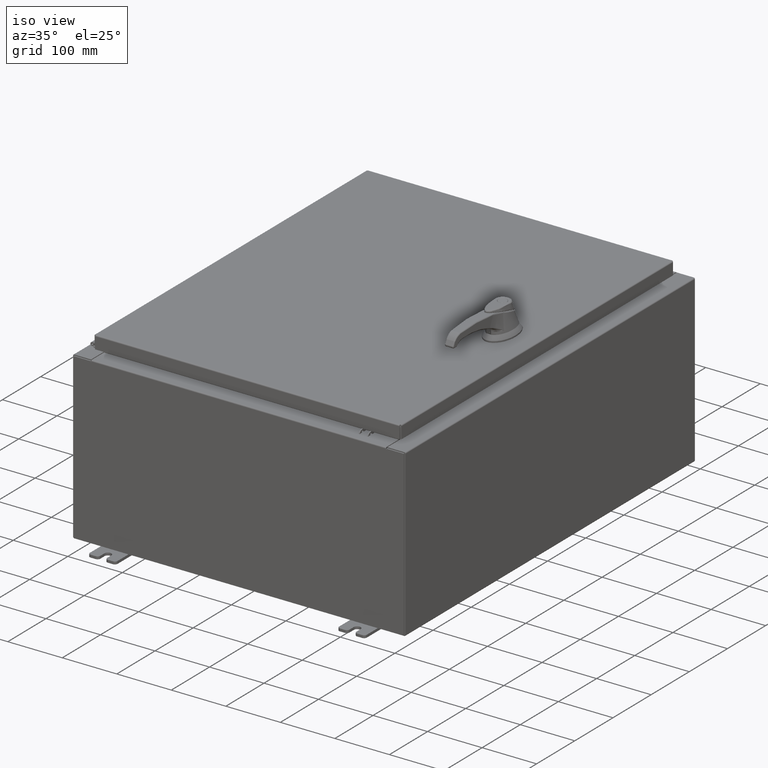
[diagram: clean part render]
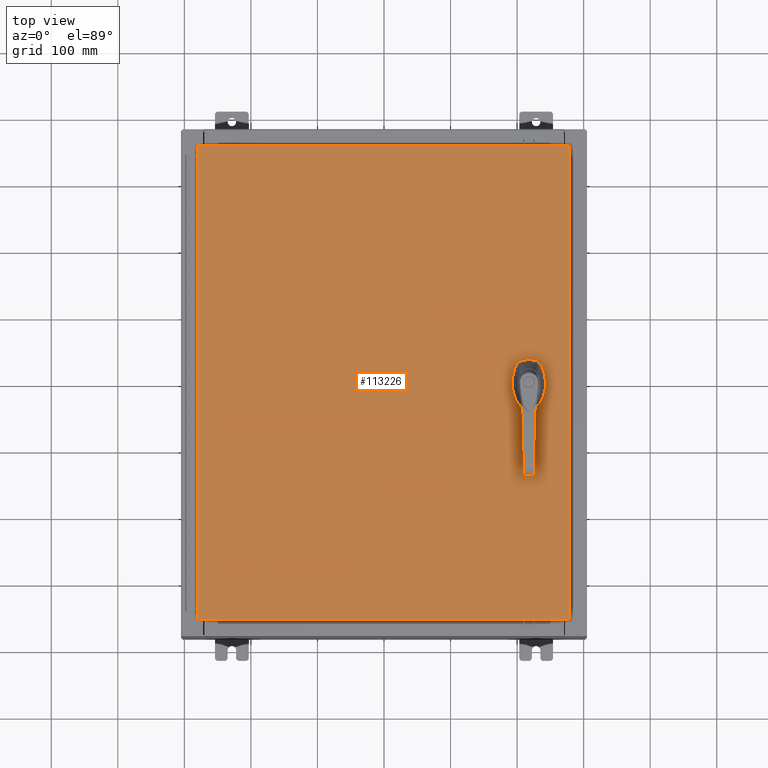
[diagram: tour spotlight — one face highlighted and labeled with its STEP entity id]
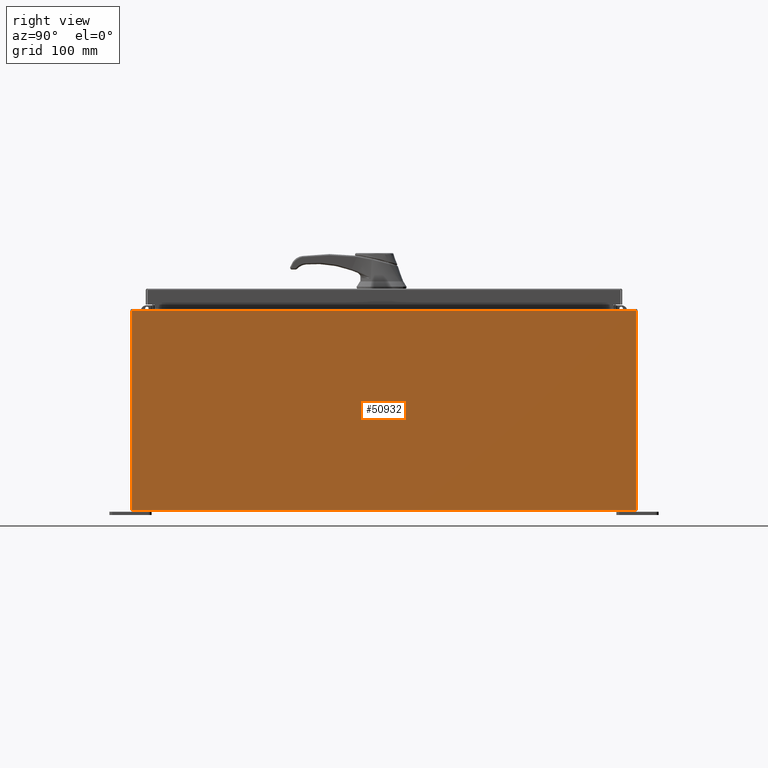
[diagram: tour spotlight — one face highlighted and labeled with its STEP entity id]
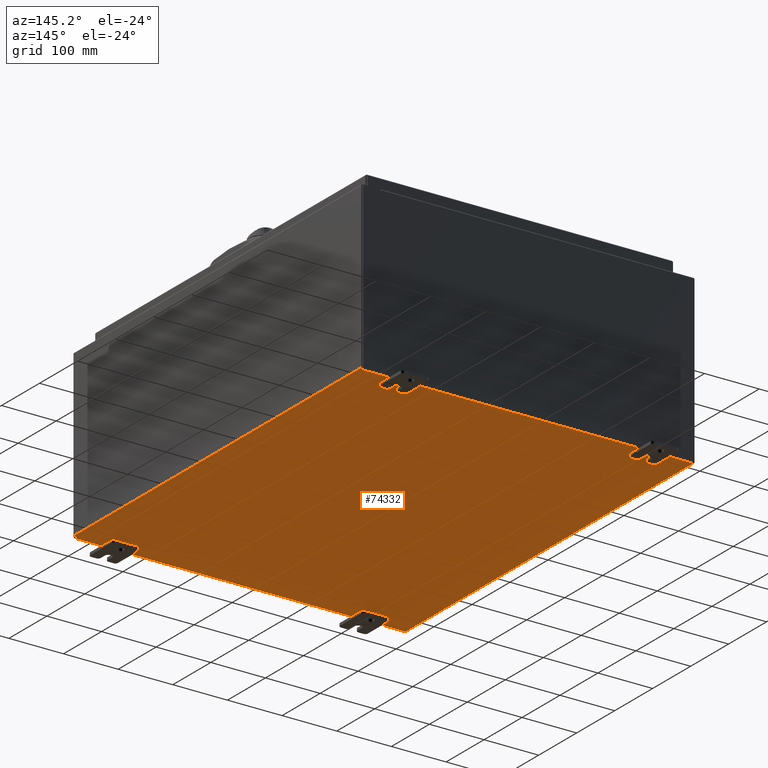
[diagram: tour spotlight — one face highlighted and labeled with its STEP entity id]
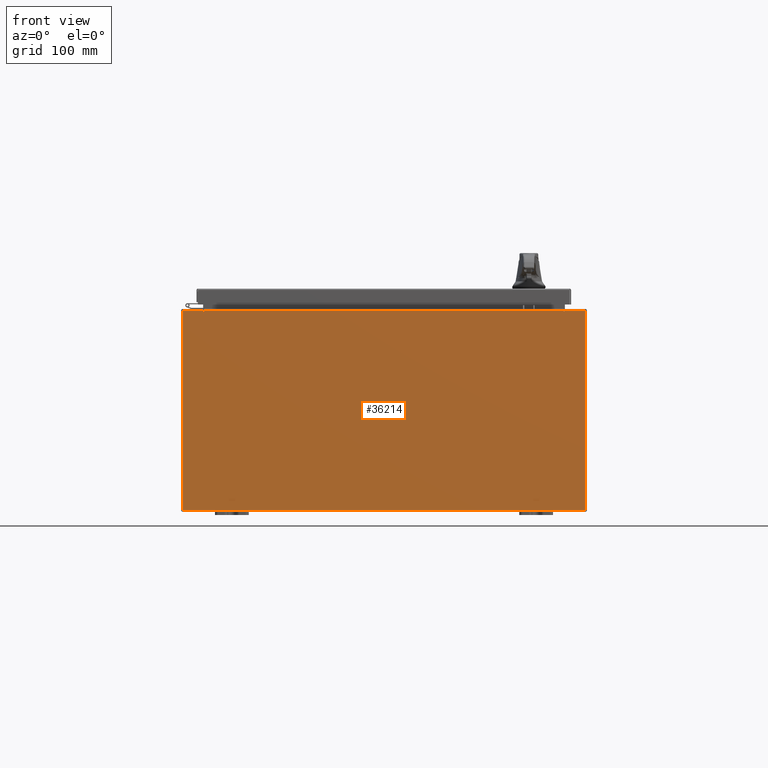
[diagram: tour spotlight — one face highlighted and labeled with its STEP entity id]
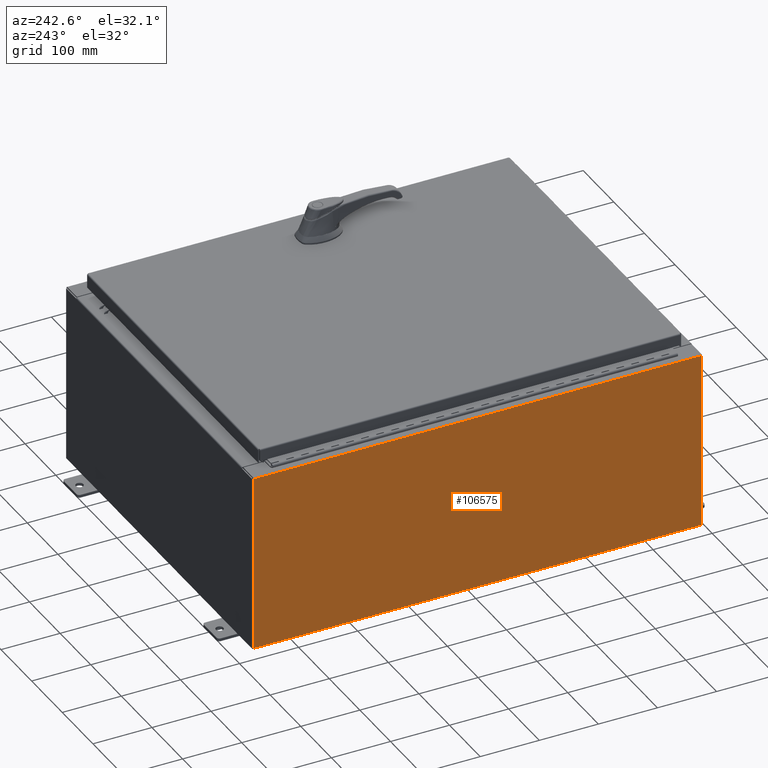
[diagram: tour spotlight — one face highlighted and labeled with its STEP entity id]
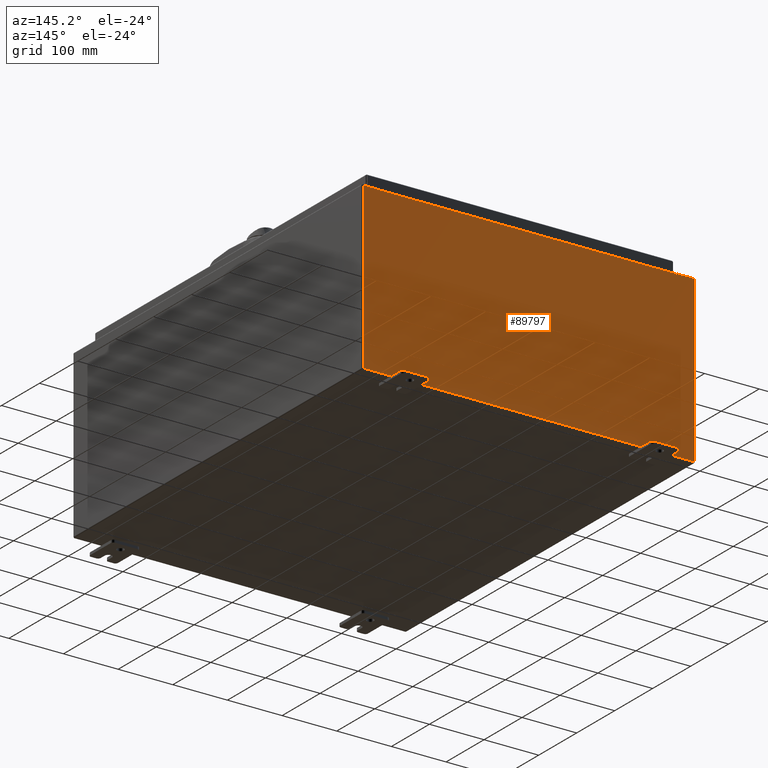
[diagram: tour spotlight — one face highlighted and labeled with its STEP entity id]
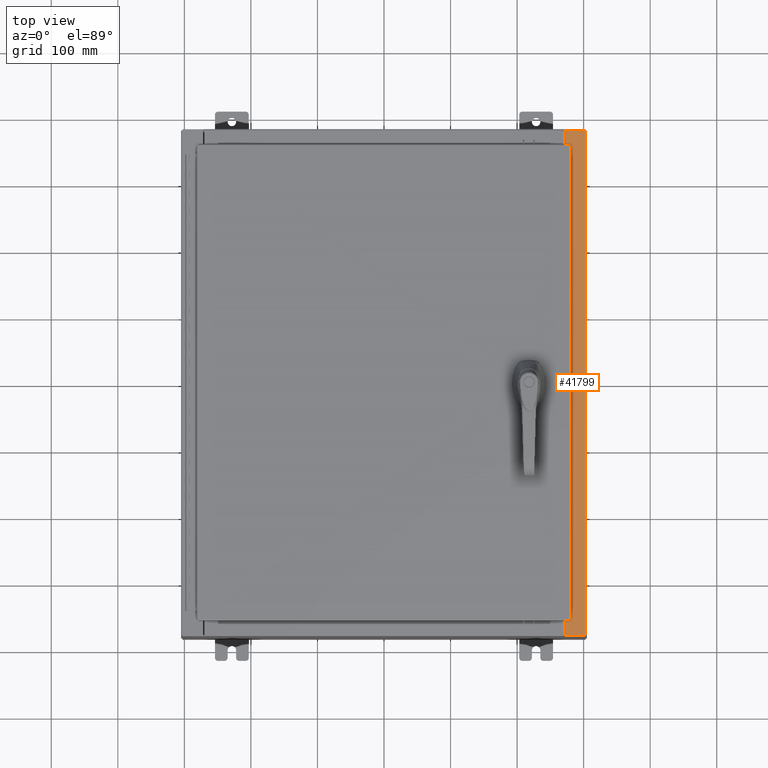
[diagram: tour spotlight — one face highlighted and labeled with its STEP entity id]
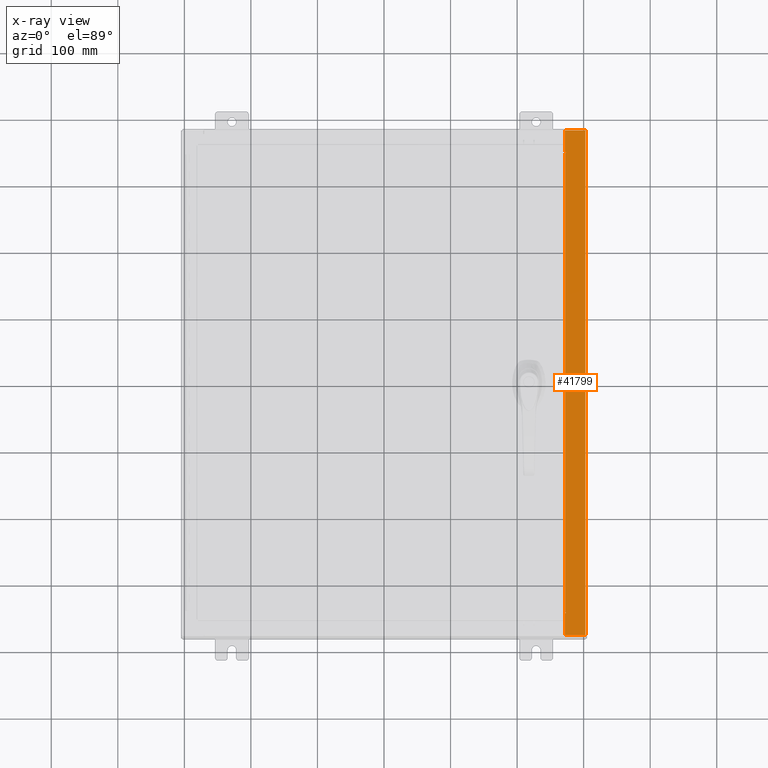
[diagram: x-ray of the same camera — body ghosted, this tour face saturated]
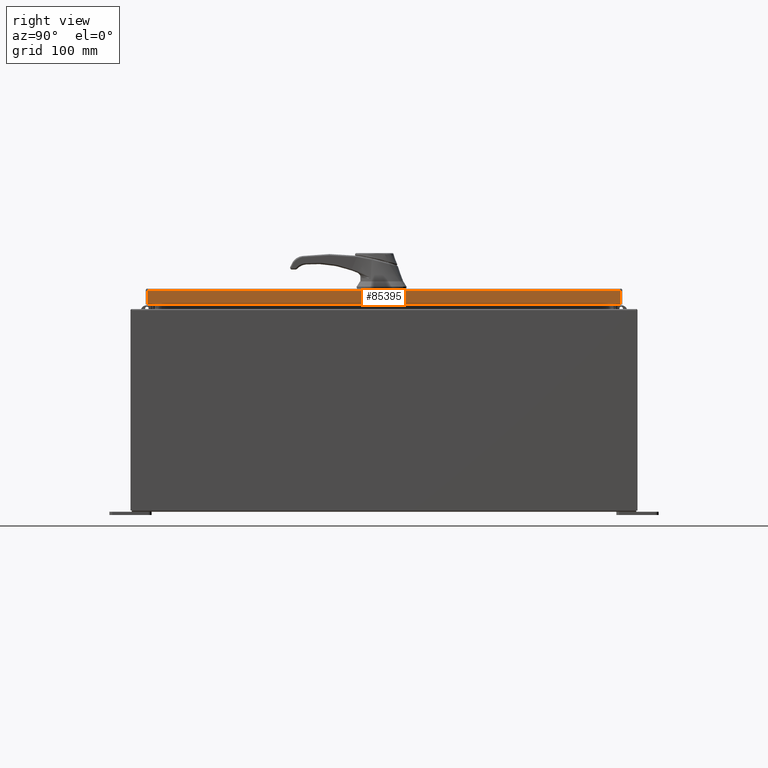
[diagram: tour spotlight — one face highlighted and labeled with its STEP entity id]
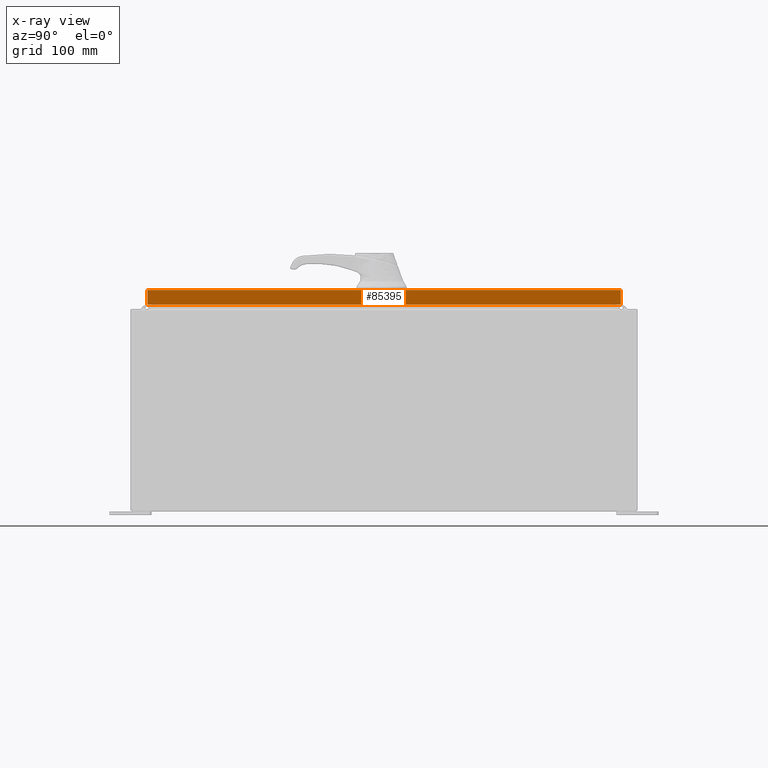
[diagram: x-ray of the same camera — body ghosted, this tour face saturated]
A machine part: a face-by-face anatomy tour. The part has 2662 B-rep faces; the first image is the clean iso view, then the 8 largest visible faces are spotlighted one at a time (largest first), each with its STEP entity span.

Face 1 — top view, entity #113226. In plain terms, the highlighted planar face has unit normal (0, 0, -1).
Definition (entity closure, byte-faithful):
#552 = CARTESIAN_POINT ( 'NONE',  ( 8.175000000000073500, 0.0000000000000000000, 0.0000000000000000000 ) ) ;
#681 = CARTESIAN_POINT ( 'NONE',  ( 8.778227370756310300, -0.4029999999999252000, 0.0000000000000000000 ) ) ;
#3718 = EDGE_LOOP ( 'NONE', ( #83803, #65424, #11867, #68314 ) ) ;
#3918 = VERTEX_POINT ( 'NONE', #81600 ) ;
#4423 = DIRECTION ( 'NONE',  ( -1.000000000000000000, 0.0000000000000000000, -0.0000000000000000000 ) ) ;
#6012 = CIRCLE ( 'NONE', #84306, 0.1715000000000011500 ) ;
#6052 = ORIENTED_EDGE ( 'NONE', *, *, #37590, .F. ) ;
#6076 = EDGE_CURVE ( 'NONE', #28359, #83015, #107732, .T. ) ;
#6632 = EDGE_CURVE ( 'NONE', #3918, #25065, #6012, .T. ) ;
#7347 = DIRECTION ( 'NONE',  ( -0.0000000000000000000, 0.0000000000000000000, 1.000000000000000000 ) ) ;
#8668 = CIRCLE ( 'NONE', #35659, 0.4499999999999156900 ) ;
#9457 = CARTESIAN_POINT ( 'NONE',  ( -10.99030000000000000, 14.00630000000000100, -2.048885995248197400E-016 ) ) ;
#9468 = DIRECTION ( 'NONE',  ( -0.0000000000000000000, 0.0000000000000000000, 1.000000000000000000 ) ) ;
#9781 = VECTOR ( 'NONE', #37372, 39.37007874015748100 ) ;
#10067 = CARTESIAN_POINT ( 'NONE',  ( -10.99030000000000000, 14.00630000000000100, -2.048885995248197400E-016 ) ) ;
#10175 = AXIS2_PLACEMENT_3D ( 'NONE', #64315, #9468, #73525 ) ;
#10211 = CARTESIAN_POINT ( 'NONE',  ( 8.980999999999927000, -0.2002273707563079800, 0.0000000000000000000 ) ) ;
#10273 = VECTOR ( 'NONE', #17662, 39.37007874015748100 ) ;
#10415 = ORIENTED_EDGE ( 'NONE', *, *, #58830, .F. ) ;
#10956 = CARTESIAN_POINT ( 'NONE',  ( 10.99030000000000000, -14.00629999999999800, -2.048885995248197400E-016 ) ) ;
#11867 = ORIENTED_EDGE ( 'NONE', *, *, #6076, .T. ) ;
#16851 = EDGE_CURVE ( 'NONE', #53922, #82404, #80452, .T. ) ;
#17662 = DIRECTION ( 'NONE',  ( 2.728745808672812900E-015, -1.000000000000000000, 0.0000000000000000000 ) ) ;
#18204 = VECTOR ( 'NONE', #74012, 39.37007874015748100 ) ;
#19116 = CARTESIAN_POINT ( 'NONE',  ( -10.99029999999999600, -14.00629999999999800, -2.219626494852214000E-016 ) ) ;
#20213 = CIRCLE ( 'NONE', #107423, 0.4499999999999156900 ) ;
#25065 = VERTEX_POINT ( 'NONE', #87733 ) ;
#25366 = EDGE_LOOP ( 'NONE', ( #57072, #53209, #6052, #99730, #84973, #81536, #68091, #10415 ) ) ;
#28359 = VERTEX_POINT ( 'NONE', #47583 ) ;
#29485 = EDGE_CURVE ( 'NONE', #47803, #82404, #44343, .T. ) ;
#30784 = DIRECTION ( 'NONE',  ( -1.000000000000000000, 0.0000000000000000000, 0.0000000000000000000 ) ) ;
#30899 = EDGE_CURVE ( 'NONE', #65604, #81513, #34101, .T. ) ;
#30973 = VERTEX_POINT ( 'NONE', #38145 ) ;
#32534 = EDGE_CURVE ( 'NONE', #83015, #41178, #108363, .T. ) ;
#32985 = CARTESIAN_POINT ( 'NONE',  ( 8.577999999999999400, 0.0000000000000000000, 0.0000000000000000000 ) ) ;
#34101 = LINE ( 'NONE', #552, #9781 ) ;
#35355 = VECTOR ( 'NONE', #73516, 39.37007874015748100 ) ;
#35659 = AXIS2_PLACEMENT_3D ( 'NONE', #32985, #97066, #42217 ) ;
#37104 = EDGE_CURVE ( 'NONE', #109594, #47286, #55060, .T. ) ;
#37372 = DIRECTION ( 'NONE',  ( 0.0000000000000000000, -1.000000000000000000, 0.0000000000000000000 ) ) ;
#37590 = EDGE_CURVE ( 'NONE', #37837, #47803, #102194, .T. ) ;
#37837 = VERTEX_POINT ( 'NONE', #74236 ) ;
#38145 = CARTESIAN_POINT ( 'NONE',  ( 10.99030000000000000, -14.00629999999999800, -2.048885995248197400E-016 ) ) ;
#39296 = DIRECTION ( 'NONE',  ( -0.0000000000000000000, 0.0000000000000000000, 1.000000000000000000 ) ) ;
#41178 = VERTEX_POINT ( 'NONE', #102740 ) ;
#42217 = DIRECTION ( 'NONE',  ( 1.000000000000000000, 0.0000000000000000000, 0.0000000000000000000 ) ) ;
#42256 = DIRECTION ( 'NONE',  ( -0.0000000000000000000, 0.0000000000000000000, 1.000000000000000000 ) ) ;
#44343 = CIRCLE ( 'NONE', #61997, 0.4499999999999156900 ) ;
#45370 = CARTESIAN_POINT ( 'NONE',  ( 8.175000000000073500, -0.2002273707563079800, 0.0000000000000000000 ) ) ;
#46951 = CARTESIAN_POINT ( 'NONE',  ( 8.577999999999999400, 0.0000000000000000000, 0.0000000000000000000 ) ) ;
#47286 = VERTEX_POINT ( 'NONE', #64250 ) ;
#47583 = CARTESIAN_POINT ( 'NONE',  ( 10.99030000000000000, 14.00629999999999800, -2.048885995248197400E-016 ) ) ;
#47803 = VERTEX_POINT ( 'NONE', #681 ) ;
#51325 = CARTESIAN_POINT ( 'NONE',  ( 8.980999999999925300, 0.2002273707563080300, 0.0000000000000000000 ) ) ;
#53209 = ORIENTED_EDGE ( 'NONE', *, *, #29485, .F. ) ;
#53922 = VERTEX_POINT ( 'NONE', #51325 ) ;
#55060 = LINE ( 'NONE', #105612, #103677 ) ;
#55211 = AXIS2_PLACEMENT_3D ( 'NONE', #104853, #113638, #4423 ) ;
#56159 = DIRECTION ( 'NONE',  ( 1.000000000000000000, 0.0000000000000000000, 0.0000000000000000000 ) ) ;
#57072 = ORIENTED_EDGE ( 'NONE', *, *, #16851, .T. ) ;
#57391 = DIRECTION ( 'NONE',  ( 0.0000000000000000000, 1.000000000000000000, 0.0000000000000000000 ) ) ;
#58830 = EDGE_CURVE ( 'NONE', #53922, #109594, #8668, .T. ) ;
#58954 = VECTOR ( 'NONE', #57391, 39.37007874015748100 ) ;
#59060 = VECTOR ( 'NONE', #89626, 39.37007874015748100 ) ;
#59099 = ORIENTED_EDGE ( 'NONE', *, *, #6632, .F. ) ;
#59242 = PLANE ( 'NONE',  #55211 ) ;
#59792 = FACE_OUTER_BOUND ( 'NONE', #3718, .T. ) ;
#61997 = AXIS2_PLACEMENT_3D ( 'NONE', #94163, #39296, #103307 ) ;
#62166 = CARTESIAN_POINT ( 'NONE',  ( 8.577999999999999400, 0.0000000000000000000, 0.0000000000000000000 ) ) ;
#64250 = CARTESIAN_POINT ( 'NONE',  ( 8.377772629243690300, 0.4029999999999252000, 0.0000000000000000000 ) ) ;
#64315 = CARTESIAN_POINT ( 'NONE',  ( 8.577999999999999400, -1.338000000000000100, 0.0000000000000000000 ) ) ;
#65424 = ORIENTED_EDGE ( 'NONE', *, *, #100059, .T. ) ;
#65604 = VERTEX_POINT ( 'NONE', #109018 ) ;
#68091 = ORIENTED_EDGE ( 'NONE', *, *, #37104, .F. ) ;
#68251 = ORIENTED_EDGE ( 'NONE', *, *, #80985, .F. ) ;
#68314 = ORIENTED_EDGE ( 'NONE', *, *, #32534, .T. ) ;
#71227 = CARTESIAN_POINT ( 'NONE',  ( 10.99030000000000000, 14.00629999999999800, -2.048885995248197400E-016 ) ) ;
#71393 = DIRECTION ( 'NONE',  ( 1.000000000000000000, 0.0000000000000000000, 0.0000000000000000000 ) ) ;
#73516 = DIRECTION ( 'NONE',  ( 0.0000000000000000000, -1.000000000000000000, 0.0000000000000000000 ) ) ;
#73525 = DIRECTION ( 'NONE',  ( 1.000000000000000000, 0.0000000000000000000, 0.0000000000000000000 ) ) ;
#74012 = DIRECTION ( 'NONE',  ( 1.000000000000000000, -0.0000000000000000000, -0.0000000000000000000 ) ) ;
#74236 = CARTESIAN_POINT ( 'NONE',  ( 8.377772629243690300, -0.4029999999999252000, 0.0000000000000000000 ) ) ;
#77861 = VECTOR ( 'NONE', #79055, 39.37007874015748100 ) ;
#79055 = DIRECTION ( 'NONE',  ( 1.000000000000000000, 0.0000000000000000000, 0.0000000000000000000 ) ) ;
#79976 = CARTESIAN_POINT ( 'NONE',  ( 8.778227370756310300, 0.4029999999999252000, 0.0000000000000000000 ) ) ;
#80452 = LINE ( 'NONE', #118130, #10273 ) ;
#80985 = EDGE_CURVE ( 'NONE', #25065, #3918, #109324, .T. ) ;
#81513 = VERTEX_POINT ( 'NONE', #45370 ) ;
#81536 = ORIENTED_EDGE ( 'NONE', *, *, #100402, .F. ) ;
#81600 = CARTESIAN_POINT ( 'NONE',  ( 8.406499999999999400, -1.338000000000000100, 0.0000000000000000000 ) ) ;
#82404 = VERTEX_POINT ( 'NONE', #10211 ) ;
#83015 = VERTEX_POINT ( 'NONE', #10067 ) ;
#83803 = ORIENTED_EDGE ( 'NONE', *, *, #113547, .T. ) ;
#84306 = AXIS2_PLACEMENT_3D ( 'NONE', #97111, #42256, #106275 ) ;
#84973 = ORIENTED_EDGE ( 'NONE', *, *, #30899, .F. ) ;
#86192 = LINE ( 'NONE', #10956, #58954 ) ;
#87031 = FACE_BOUND ( 'NONE', #25366, .T. ) ;
#87733 = CARTESIAN_POINT ( 'NONE',  ( 8.749500000000001200, -1.338000000000000100, 0.0000000000000000000 ) ) ;
#89626 = DIRECTION ( 'NONE',  ( -1.000000000000000000, -0.0000000000000000000, -0.0000000000000000000 ) ) ;
#94163 = CARTESIAN_POINT ( 'NONE',  ( 8.577999999999999400, 0.0000000000000000000, 0.0000000000000000000 ) ) ;
#97066 = DIRECTION ( 'NONE',  ( -0.0000000000000000000, 0.0000000000000000000, 1.000000000000000000 ) ) ;
#97111 = CARTESIAN_POINT ( 'NONE',  ( 8.577999999999999400, -1.338000000000000100, 0.0000000000000000000 ) ) ;
#97146 = CIRCLE ( 'NONE', #114890, 0.4499999999999156900 ) ;
#99730 = ORIENTED_EDGE ( 'NONE', *, *, #112616, .F. ) ;
#100059 = EDGE_CURVE ( 'NONE', #30973, #28359, #86192, .T. ) ;
#100402 = EDGE_CURVE ( 'NONE', #47286, #65604, #20213, .T. ) ;
#102194 = LINE ( 'NONE', #115426, #77861 ) ;
#102740 = CARTESIAN_POINT ( 'NONE',  ( -10.99029999999999800, -14.00629999999999800, -2.048885995248197400E-016 ) ) ;
#103307 = DIRECTION ( 'NONE',  ( 1.000000000000000000, 0.0000000000000000000, 0.0000000000000000000 ) ) ;
#103677 = VECTOR ( 'NONE', #30784, 39.37007874015748100 ) ;
#104853 = CARTESIAN_POINT ( 'NONE',  ( 0.0000000000000000000, 0.0000000000000000000, 0.0000000000000000000 ) ) ;
#105612 = CARTESIAN_POINT ( 'NONE',  ( 0.0000000000000000000, 0.4029999999999252000, 0.0000000000000000000 ) ) ;
#106275 = DIRECTION ( 'NONE',  ( 1.000000000000000000, 0.0000000000000000000, 0.0000000000000000000 ) ) ;
#107423 = AXIS2_PLACEMENT_3D ( 'NONE', #46951, #110942, #56159 ) ;
#107732 = LINE ( 'NONE', #71227, #59060 ) ;
#108196 = EDGE_LOOP ( 'NONE', ( #68251, #59099 ) ) ;
#108363 = LINE ( 'NONE', #9457, #35355 ) ;
#109018 = CARTESIAN_POINT ( 'NONE',  ( 8.175000000000073500, 0.2002273707563079800, 0.0000000000000000000 ) ) ;
#109324 = CIRCLE ( 'NONE', #10175, 0.1715000000000011500 ) ;
#109594 = VERTEX_POINT ( 'NONE', #79976 ) ;
#110942 = DIRECTION ( 'NONE',  ( -0.0000000000000000000, 0.0000000000000000000, 1.000000000000000000 ) ) ;
#112616 = EDGE_CURVE ( 'NONE', #81513, #37837, #97146, .T. ) ;
#113226 = ADVANCED_FACE ( 'NONE', ( #114175, #59792, #87031 ), #59242, .F. ) ;
#113547 = EDGE_CURVE ( 'NONE', #41178, #30973, #115552, .T. ) ;
#113638 = DIRECTION ( 'NONE',  ( 0.0000000000000000000, 0.0000000000000000000, -1.000000000000000000 ) ) ;
#114175 = FACE_BOUND ( 'NONE', #108196, .T. ) ;
#114890 = AXIS2_PLACEMENT_3D ( 'NONE', #62166, #7347, #71393 ) ;
#115426 = CARTESIAN_POINT ( 'NONE',  ( 0.0000000000000000000, -0.4029999999999252000, 0.0000000000000000000 ) ) ;
#115552 = LINE ( 'NONE', #19116, #18204 ) ;
#118130 = CARTESIAN_POINT ( 'NONE',  ( 8.980999999999925300, 2.450686610769032800E-014, 0.0000000000000000000 ) ) ;

Face 2 — right view, entity #50932. In plain terms, the highlighted planar face has unit normal (-1, 0, 0).
Definition (entity closure, byte-faithful):
#501 = VERTEX_POINT ( 'NONE', #10116 ) ;
#2182 = DIRECTION ( 'NONE',  ( 3.482016343714355500E-015, -1.832640180902292400E-016, 1.000000000000000000 ) ) ;
#3066 = AXIS2_PLACEMENT_3D ( 'NONE', #52034, #116011, #61249 ) ;
#10116 = CARTESIAN_POINT ( 'NONE',  ( 11.99999999999999600, 14.92529999999999800, 0.01299999999999766100 ) ) ;
#11379 = CARTESIAN_POINT ( 'NONE',  ( 11.99999999999999600, 14.92530000000000000, -3.930973933138173100E-014 ) ) ;
#14778 = EDGE_CURVE ( 'NONE', #501, #74036, #96272, .T. ) ;
#21118 = LINE ( 'NONE', #106084, #115623 ) ;
#23376 = CARTESIAN_POINT ( 'NONE',  ( 11.99999999999999600, -14.92530000000000000, -3.930973933138173100E-014 ) ) ;
#24345 = ORIENTED_EDGE ( 'NONE', *, *, #65614, .T. ) ;
#30242 = ORIENTED_EDGE ( 'NONE', *, *, #14778, .T. ) ;
#36193 = DIRECTION ( 'NONE',  ( -0.0000000000000000000, -1.000000000000000000, -0.0000000000000000000 ) ) ;
#41826 = DIRECTION ( 'NONE',  ( -3.482016343714355500E-015, -1.832640180902292400E-016, -1.000000000000000000 ) ) ;
#46526 = LINE ( 'NONE', #23376, #92360 ) ;
#50442 = VECTOR ( 'NONE', #2182, 39.37007874015748100 ) ;
#50932 = ADVANCED_FACE ( 'NONE', ( #84053 ), #70065, .F. ) ;
#52034 = CARTESIAN_POINT ( 'NONE',  ( 11.99999999999999600, 0.0000000000000000000, -4.204500978058383300E-014 ) ) ;
#61249 = DIRECTION ( 'NONE',  ( 3.482016343714355100E-015, 0.0000000000000000000, 1.000000000000000000 ) ) ;
#61954 = EDGE_CURVE ( 'NONE', #501, #80273, #21118, .T. ) ;
#65614 = EDGE_CURVE ( 'NONE', #74036, #85061, #76545, .T. ) ;
#69656 = EDGE_LOOP ( 'NONE', ( #24345, #105879, #91136, #30242 ) ) ;
#69682 = DIRECTION ( 'NONE',  ( 2.549319440810500300E-031, -1.000000000000000000, 7.321388497823869400E-017 ) ) ;
#70065 = PLANE ( 'NONE',  #3066 ) ;
#70110 = CARTESIAN_POINT ( 'NONE',  ( 11.99999999999999600, -14.92530000000000000, 0.01299999999999997900 ) ) ;
#74036 = VERTEX_POINT ( 'NONE', #82777 ) ;
#76545 = LINE ( 'NONE', #100231, #79392 ) ;
#79289 = EDGE_CURVE ( 'NONE', #85061, #80273, #46526, .T. ) ;
#79392 = VECTOR ( 'NONE', #36193, 39.37007874015748100 ) ;
#80273 = VERTEX_POINT ( 'NONE', #70110 ) ;
#82777 = CARTESIAN_POINT ( 'NONE',  ( 12.00000000000003700, 14.92529999999999800, 11.83760000000000000 ) ) ;
#84053 = FACE_OUTER_BOUND ( 'NONE', #69656, .T. ) ;
#85061 = VERTEX_POINT ( 'NONE', #98861 ) ;
#91136 = ORIENTED_EDGE ( 'NONE', *, *, #61954, .F. ) ;
#92360 = VECTOR ( 'NONE', #41826, 39.37007874015748100 ) ;
#96272 = LINE ( 'NONE', #11379, #50442 ) ;
#98861 = CARTESIAN_POINT ( 'NONE',  ( 12.00000000000003700, -14.92529999999999800, 11.83760000000000000 ) ) ;
#100231 = CARTESIAN_POINT ( 'NONE',  ( 12.00000000000003700, 14.92529999999999800, 11.83760000000000000 ) ) ;
#105879 = ORIENTED_EDGE ( 'NONE', *, *, #79289, .T. ) ;
#106084 = CARTESIAN_POINT ( 'NONE',  ( 11.99999999999999600, -14.92529999999999800, 0.01299999999999984700 ) ) ;
#115623 = VECTOR ( 'NONE', #69682, 39.37007874015748100 ) ;
#116011 = DIRECTION ( 'NONE',  ( -1.000000000000000000, 0.0000000000000000000, 3.482016343714355100E-015 ) ) ;

Face 3 — auxiliary view, entity #74332. In plain terms, the highlighted planar face has unit normal (0, 0, -1).
Definition (entity closure, byte-faithful):
#349 = ORIENTED_EDGE ( 'NONE', *, *, #21272, .T. ) ;
#2903 = DIRECTION ( 'NONE',  ( -1.000000000000000000, -0.0000000000000000000, -0.0000000000000000000 ) ) ;
#5792 = EDGE_LOOP ( 'NONE', ( #66688, #349, #72770, #113266 ) ) ;
#6199 = PLANE ( 'NONE',  #76383 ) ;
#10064 = VERTEX_POINT ( 'NONE', #19404 ) ;
#16818 = VECTOR ( 'NONE', #41784, 39.37007874015748100 ) ;
#18146 = VECTOR ( 'NONE', #43902, 39.37007874015748100 ) ;
#19404 = CARTESIAN_POINT ( 'NONE',  ( -11.91230000000000500, 14.92530000000000000, -0.07470000000000000300 ) ) ;
#21272 = EDGE_CURVE ( 'NONE', #107553, #10064, #46855, .T. ) ;
#22436 = VECTOR ( 'NONE', #36389, 39.37007874015748100 ) ;
#31273 = VERTEX_POINT ( 'NONE', #100847 ) ;
#34303 = CARTESIAN_POINT ( 'NONE',  ( 11.91229999999999700, 14.92530000000000000, -0.07470000000000226500 ) ) ;
#36389 = DIRECTION ( 'NONE',  ( -0.0000000000000000000, 1.000000000000000000, -0.0000000000000000000 ) ) ;
#41784 = DIRECTION ( 'NONE',  ( -0.0000000000000000000, -1.000000000000000000, 8.208677865577646300E-017 ) ) ;
#42708 = FACE_OUTER_BOUND ( 'NONE', #5792, .T. ) ;
#43902 = DIRECTION ( 'NONE',  ( 1.000000000000000000, 0.0000000000000000000, 0.0000000000000000000 ) ) ;
#46855 = LINE ( 'NONE', #117613, #22436 ) ;
#52219 = CARTESIAN_POINT ( 'NONE',  ( 0.0000000000000000000, 0.0000000000000000000, -0.07470000000000000300 ) ) ;
#53031 = VERTEX_POINT ( 'NONE', #34303 ) ;
#53120 = CARTESIAN_POINT ( 'NONE',  ( -12.00000000000000500, -14.92530000000000000, -0.07470000000000000300 ) ) ;
#56193 = EDGE_CURVE ( 'NONE', #53031, #10064, #107673, .T. ) ;
#61434 = DIRECTION ( 'NONE',  ( -1.000000000000000000, 0.0000000000000000000, -0.0000000000000000000 ) ) ;
#62866 = EDGE_CURVE ( 'NONE', #107553, #31273, #66910, .T. ) ;
#65588 = LINE ( 'NONE', #105806, #16818 ) ;
#66688 = ORIENTED_EDGE ( 'NONE', *, *, #62866, .F. ) ;
#66910 = LINE ( 'NONE', #53120, #18146 ) ;
#66950 = CARTESIAN_POINT ( 'NONE',  ( -12.00000000000000500, 14.92530000000000000, -0.07470000000000000300 ) ) ;
#72770 = ORIENTED_EDGE ( 'NONE', *, *, #56193, .F. ) ;
#74332 = ADVANCED_FACE ( 'NONE', ( #42708 ), #6199, .T. ) ;
#76383 = AXIS2_PLACEMENT_3D ( 'NONE', #52219, #116203, #61434 ) ;
#100847 = CARTESIAN_POINT ( 'NONE',  ( 11.91229999999998800, -14.92530000000000000, -0.07470000000000000300 ) ) ;
#103151 = CARTESIAN_POINT ( 'NONE',  ( -11.91230000000000500, -14.92530000000000000, -0.07469999999999994700 ) ) ;
#104807 = VECTOR ( 'NONE', #2903, 39.37007874015748100 ) ;
#105806 = CARTESIAN_POINT ( 'NONE',  ( 11.91229999999999700, 14.92530000000000000, -0.07470000000000226500 ) ) ;
#107553 = VERTEX_POINT ( 'NONE', #103151 ) ;
#107673 = LINE ( 'NONE', #66950, #104807 ) ;
#113266 = ORIENTED_EDGE ( 'NONE', *, *, #118256, .T. ) ;
#116203 = DIRECTION ( 'NONE',  ( 0.0000000000000000000, 0.0000000000000000000, -1.000000000000000000 ) ) ;
#117613 = CARTESIAN_POINT ( 'NONE',  ( -11.91230000000000500, -14.92530000000000000, -0.07469999999999994700 ) ) ;
#118256 = EDGE_CURVE ( 'NONE', #53031, #31273, #65588, .T. ) ;

Face 4 — front view, entity #36214. In plain terms, the highlighted planar face has unit normal (-0, 1, -0).
Definition (entity closure, byte-faithful):
#6 = LINE ( 'NONE', #47158, #94507 ) ;
#148 = VECTOR ( 'NONE', #74026, 39.37007874015748100 ) ;
#1010 = PLANE ( 'NONE',  #60516 ) ;
#1474 = EDGE_CURVE ( 'NONE', #107399, #37164, #72400, .T. ) ;
#1796 = VERTEX_POINT ( 'NONE', #81431 ) ;
#1867 = VECTOR ( 'NONE', #81628, 39.37007874015748100 ) ;
#2028 = DIRECTION ( 'NONE',  ( -0.0000000000000000000, 1.000000000000000000, -0.0000000000000000000 ) ) ;
#3326 = VECTOR ( 'NONE', #64729, 39.37007874015748100 ) ;
#4731 = LINE ( 'NONE', #26745, #1867 ) ;
#6156 = DIRECTION ( 'NONE',  ( -0.0000000000000000000, 1.000000000000000000, -0.0000000000000000000 ) ) ;
#8696 = VERTEX_POINT ( 'NONE', #18501 ) ;
#9400 = EDGE_CURVE ( 'NONE', #53230, #15289, #28251, .T. ) ;
#10206 = DIRECTION ( 'NONE',  ( 0.0000000000000000000, -1.000000000000000000, 0.0000000000000000000 ) ) ;
#10776 = CARTESIAN_POINT ( 'NONE',  ( 10.67455000000000200, 0.0000000000000000000, 0.0000000000000000000 ) ) ;
#14022 = EDGE_CURVE ( 'NONE', #37164, #36146, #4731, .T. ) ;
#14937 = VECTOR ( 'NONE', #43832, 39.37007874015748100 ) ;
#15289 = VERTEX_POINT ( 'NONE', #53731 ) ;
#16380 = VECTOR ( 'NONE', #22233, 39.37007874015748100 ) ;
#18501 = CARTESIAN_POINT ( 'NONE',  ( -10.63720000000000400, -0.0000000000000000000, 5.874950000000001000 ) ) ;
#19115 = CARTESIAN_POINT ( 'NONE',  ( -11.92530000000000000, 0.0000000000000000000, 5.925300000000000000 ) ) ;
#20157 = LINE ( 'NONE', #19115, #66050 ) ;
#21414 = CARTESIAN_POINT ( 'NONE',  ( -10.67455000000000200, 0.0000000000000000000, 5.925300000000000000 ) ) ;
#22233 = DIRECTION ( 'NONE',  ( 1.000000000000000000, 0.0000000000000000000, 0.0000000000000000000 ) ) ;
#23623 = VECTOR ( 'NONE', #65616, 39.37007874015748100 ) ;
#24948 = VERTEX_POINT ( 'NONE', #105330 ) ;
#25262 = VERTEX_POINT ( 'NONE', #108083 ) ;
#26745 = CARTESIAN_POINT ( 'NONE',  ( -11.92530000000000000, 0.0000000000000000000, -5.925299999999999100 ) ) ;
#27642 = LINE ( 'NONE', #83152, #3326 ) ;
#28251 = LINE ( 'NONE', #10776, #49738 ) ;
#28293 = EDGE_CURVE ( 'NONE', #36146, #25262, #97523, .T. ) ;
#31719 = ORIENTED_EDGE ( 'NONE', *, *, #66122, .T. ) ;
#32768 = ORIENTED_EDGE ( 'NONE', *, *, #28293, .T. ) ;
#32772 = EDGE_CURVE ( 'NONE', #8696, #66545, #42467, .T. ) ;
#34346 = EDGE_LOOP ( 'NONE', ( #63932, #99133, #97722, #83419, #113199, #72450, #82075, #113801, #101475, #36794, #32768, #31719 ) ) ;
#34591 = CARTESIAN_POINT ( 'NONE',  ( -10.63720000000000400, -0.0000000000000000000, 0.0000000000000000000 ) ) ;
#35577 = CARTESIAN_POINT ( 'NONE',  ( -10.67455000000000200, 0.0000000000000000000, 5.874950000000001000 ) ) ;
#36146 = VERTEX_POINT ( 'NONE', #82284 ) ;
#36214 = ADVANCED_FACE ( 'NONE', ( #85236 ), #1010, .F. ) ;
#36794 = ORIENTED_EDGE ( 'NONE', *, *, #14022, .T. ) ;
#37164 = VERTEX_POINT ( 'NONE', #69609 ) ;
#42467 = CIRCLE ( 'NONE', #115518, 0.01867499999999949400 ) ;
#43832 = DIRECTION ( 'NONE',  ( 0.0000000000000000000, 0.0000000000000000000, -1.000000000000000000 ) ) ;
#44966 = LINE ( 'NONE', #116729, #93654 ) ;
#47158 = CARTESIAN_POINT ( 'NONE',  ( 10.63720000000000400, 0.0000000000000000000, 0.0000000000000000000 ) ) ;
#49738 = VECTOR ( 'NONE', #111204, 39.37007874015748100 ) ;
#52754 = DIRECTION ( 'NONE',  ( 1.000000000000000000, 0.0000000000000000000, 4.581600452255731000E-017 ) ) ;
#53230 = VERTEX_POINT ( 'NONE', #102272 ) ;
#53731 = CARTESIAN_POINT ( 'NONE',  ( 10.67455000000000200, 0.0000000000000000000, 5.874950000000001000 ) ) ;
#55141 = EDGE_CURVE ( 'NONE', #66545, #71120, #27642, .T. ) ;
#56864 = CARTESIAN_POINT ( 'NONE',  ( 10.65587500000000200, 0.0000000000000000000, 5.874950000000001000 ) ) ;
#60516 = AXIS2_PLACEMENT_3D ( 'NONE', #73860, #10206, #74269 ) ;
#60992 = CARTESIAN_POINT ( 'NONE',  ( -10.65587500000000200, 0.0000000000000000000, 5.874950000000001000 ) ) ;
#63667 = LINE ( 'NONE', #34591, #14937 ) ;
#63932 = ORIENTED_EDGE ( 'NONE', *, *, #55141, .F. ) ;
#64729 = DIRECTION ( 'NONE',  ( 0.0000000000000000000, 0.0000000000000000000, 1.000000000000000000 ) ) ;
#64812 = CARTESIAN_POINT ( 'NONE',  ( -11.92530000000000000, 0.0000000000000000000, 5.925300000000000000 ) ) ;
#65150 = LINE ( 'NONE', #67930, #16380 ) ;
#65486 = EDGE_CURVE ( 'NONE', #90013, #8696, #63667, .T. ) ;
#65616 = DIRECTION ( 'NONE',  ( 0.0000000000000000000, 0.0000000000000000000, -1.000000000000000000 ) ) ;
#66050 = VECTOR ( 'NONE', #101194, 39.37007874015748100 ) ;
#66083 = DIRECTION ( 'NONE',  ( 0.0000000000000000000, 0.0000000000000000000, -1.000000000000000000 ) ) ;
#66122 = EDGE_CURVE ( 'NONE', #25262, #71120, #44966, .T. ) ;
#66545 = VERTEX_POINT ( 'NONE', #35577 ) ;
#67930 = CARTESIAN_POINT ( 'NONE',  ( -10.63720000000000400, -1.707404996040164500E-016, 5.912300000000001000 ) ) ;
#69609 = CARTESIAN_POINT ( 'NONE',  ( 11.92530000000000000, 0.0000000000000000000, -5.925299999999999100 ) ) ;
#70209 = DIRECTION ( 'NONE',  ( 0.0000000000000000000, 0.0000000000000000000, -1.000000000000000000 ) ) ;
#71120 = VERTEX_POINT ( 'NONE', #21414 ) ;
#72397 = EDGE_CURVE ( 'NONE', #1796, #24948, #6, .T. ) ;
#72400 = LINE ( 'NONE', #92831, #23623 ) ;
#72450 = ORIENTED_EDGE ( 'NONE', *, *, #97261, .F. ) ;
#73860 = CARTESIAN_POINT ( 'NONE',  ( 0.0000000000000000000, 0.0000000000000000000, 0.0000000000000000000 ) ) ;
#74026 = DIRECTION ( 'NONE',  ( -0.0000000000000000000, -0.0000000000000000000, 1.000000000000000000 ) ) ;
#74269 = DIRECTION ( 'NONE',  ( 0.0000000000000000000, -0.0000000000000000000, -1.000000000000000000 ) ) ;
#81431 = CARTESIAN_POINT ( 'NONE',  ( 10.63720000000000400, 0.0000000000000000000, 5.874950000000001000 ) ) ;
#81628 = DIRECTION ( 'NONE',  ( -1.000000000000000000, -0.0000000000000000000, -0.0000000000000000000 ) ) ;
#82075 = ORIENTED_EDGE ( 'NONE', *, *, #9400, .F. ) ;
#82284 = CARTESIAN_POINT ( 'NONE',  ( -11.92530000000000000, 0.0000000000000000000, -5.925299999999999100 ) ) ;
#83152 = CARTESIAN_POINT ( 'NONE',  ( -10.67455000000000200, -0.0000000000000000000, 0.0000000000000000000 ) ) ;
#83419 = ORIENTED_EDGE ( 'NONE', *, *, #90434, .T. ) ;
#83587 = EDGE_CURVE ( 'NONE', #53230, #107399, #20157, .T. ) ;
#85236 = FACE_OUTER_BOUND ( 'NONE', #34346, .T. ) ;
#90013 = VERTEX_POINT ( 'NONE', #108060 ) ;
#90434 = EDGE_CURVE ( 'NONE', #90013, #24948, #65150, .T. ) ;
#92831 = CARTESIAN_POINT ( 'NONE',  ( 11.92530000000000000, 0.0000000000000000000, 5.925300000000001800 ) ) ;
#93654 = VECTOR ( 'NONE', #52754, 39.37007874015748100 ) ;
#94507 = VECTOR ( 'NONE', #111133, 39.37007874015748100 ) ;
#95148 = CIRCLE ( 'NONE', #97629, 0.01867499999999949400 ) ;
#97261 = EDGE_CURVE ( 'NONE', #15289, #1796, #95148, .T. ) ;
#97523 = LINE ( 'NONE', #64812, #148 ) ;
#97629 = AXIS2_PLACEMENT_3D ( 'NONE', #56864, #2028, #66083 ) ;
#97722 = ORIENTED_EDGE ( 'NONE', *, *, #65486, .F. ) ;
#99133 = ORIENTED_EDGE ( 'NONE', *, *, #32772, .F. ) ;
#101194 = DIRECTION ( 'NONE',  ( 1.000000000000000000, 0.0000000000000000000, 4.581600452255731000E-017 ) ) ;
#101475 = ORIENTED_EDGE ( 'NONE', *, *, #1474, .T. ) ;
#101588 = CARTESIAN_POINT ( 'NONE',  ( 11.92530000000000000, 0.0000000000000000000, 5.925300000000001800 ) ) ;
#102272 = CARTESIAN_POINT ( 'NONE',  ( 10.67455000000000200, 0.0000000000000000000, 5.925300000000001800 ) ) ;
#105330 = CARTESIAN_POINT ( 'NONE',  ( 10.63720000000000400, 0.0000000000000000000, 5.912300000000001000 ) ) ;
#107399 = VERTEX_POINT ( 'NONE', #101588 ) ;
#108060 = CARTESIAN_POINT ( 'NONE',  ( -10.63720000000000400, -1.707404996040164500E-016, 5.912300000000001000 ) ) ;
#108083 = CARTESIAN_POINT ( 'NONE',  ( -11.92530000000000000, 0.0000000000000000000, 5.925300000000000000 ) ) ;
#111133 = DIRECTION ( 'NONE',  ( 0.0000000000000000000, 0.0000000000000000000, 1.000000000000000000 ) ) ;
#111204 = DIRECTION ( 'NONE',  ( 0.0000000000000000000, 0.0000000000000000000, -1.000000000000000000 ) ) ;
#113199 = ORIENTED_EDGE ( 'NONE', *, *, #72397, .F. ) ;
#113801 = ORIENTED_EDGE ( 'NONE', *, *, #83587, .T. ) ;
#115518 = AXIS2_PLACEMENT_3D ( 'NONE', #60992, #6156, #70209 ) ;
#116729 = CARTESIAN_POINT ( 'NONE',  ( -11.92530000000000000, 0.0000000000000000000, 5.925300000000000000 ) ) ;

Face 5 — auxiliary view, entity #106575. In plain terms, the highlighted planar face has unit normal (1, 0, 0).
Definition (entity closure, byte-faithful):
#1469 = LINE ( 'NONE', #27397, #44416 ) ;
#3504 = ORIENTED_EDGE ( 'NONE', *, *, #29333, .T. ) ;
#23309 = LINE ( 'NONE', #66516, #69180 ) ;
#27397 = CARTESIAN_POINT ( 'NONE',  ( -12.00000000000000500, 14.92530000000000000, 0.01299999999999984700 ) ) ;
#28591 = VECTOR ( 'NONE', #117383, 39.37007874015748100 ) ;
#28649 = CARTESIAN_POINT ( 'NONE',  ( -12.00000000000004600, 14.92530000000000000, 11.83760000000000000 ) ) ;
#29333 = EDGE_CURVE ( 'NONE', #65359, #100322, #77296, .T. ) ;
#36628 = DIRECTION ( 'NONE',  ( -0.0000000000000000000, 1.000000000000000000, -0.0000000000000000000 ) ) ;
#37556 = CARTESIAN_POINT ( 'NONE',  ( -12.00000000000000500, 0.0000000000000000000, -4.204500978058386500E-014 ) ) ;
#37830 = VERTEX_POINT ( 'NONE', #65011 ) ;
#42266 = ORIENTED_EDGE ( 'NONE', *, *, #104376, .T. ) ;
#42675 = LINE ( 'NONE', #117492, #67050 ) ;
#43135 = EDGE_LOOP ( 'NONE', ( #42266, #3504, #107757, #97640 ) ) ;
#44416 = VECTOR ( 'NONE', #36628, 39.37007874015748100 ) ;
#46774 = DIRECTION ( 'NONE',  ( 3.482016343714355100E-015, 0.0000000000000000000, -1.000000000000000000 ) ) ;
#47255 = EDGE_CURVE ( 'NONE', #37830, #100322, #1469, .T. ) ;
#48829 = CARTESIAN_POINT ( 'NONE',  ( -12.00000000000004600, -14.92530000000000000, 11.83760000000000000 ) ) ;
#52667 = DIRECTION ( 'NONE',  ( -3.482016343714355500E-015, 0.0000000000000000000, 1.000000000000000000 ) ) ;
#53510 = DIRECTION ( 'NONE',  ( 0.0000000000000000000, 1.000000000000000000, 0.0000000000000000000 ) ) ;
#65011 = CARTESIAN_POINT ( 'NONE',  ( -12.00000000000000500, -14.92530000000000000, 0.01299999999999984700 ) ) ;
#65359 = VERTEX_POINT ( 'NONE', #28649 ) ;
#66516 = CARTESIAN_POINT ( 'NONE',  ( -12.00000000000000500, -14.92530000000000000, -4.204500978058386500E-014 ) ) ;
#66968 = EDGE_CURVE ( 'NONE', #37830, #70332, #23309, .T. ) ;
#67050 = VECTOR ( 'NONE', #53510, 39.37007874015748100 ) ;
#67147 = AXIS2_PLACEMENT_3D ( 'NONE', #37556, #101573, #46774 ) ;
#69180 = VECTOR ( 'NONE', #52667, 39.37007874015748100 ) ;
#70332 = VERTEX_POINT ( 'NONE', #48829 ) ;
#74004 = PLANE ( 'NONE',  #67147 ) ;
#77296 = LINE ( 'NONE', #108176, #28591 ) ;
#95064 = FACE_OUTER_BOUND ( 'NONE', #43135, .T. ) ;
#97640 = ORIENTED_EDGE ( 'NONE', *, *, #66968, .T. ) ;
#100322 = VERTEX_POINT ( 'NONE', #118570 ) ;
#101573 = DIRECTION ( 'NONE',  ( 1.000000000000000000, 0.0000000000000000000, 3.482016343714355100E-015 ) ) ;
#104376 = EDGE_CURVE ( 'NONE', #70332, #65359, #42675, .T. ) ;
#106575 = ADVANCED_FACE ( 'NONE', ( #95064 ), #74004, .F. ) ;
#107757 = ORIENTED_EDGE ( 'NONE', *, *, #47255, .F. ) ;
#108176 = CARTESIAN_POINT ( 'NONE',  ( -12.00000000000000500, 14.92530000000000000, -4.204500978058386500E-014 ) ) ;
#117383 = DIRECTION ( 'NONE',  ( 3.482016343714355500E-015, 0.0000000000000000000, -1.000000000000000000 ) ) ;
#117492 = CARTESIAN_POINT ( 'NONE',  ( -12.00000000000004600, -14.92530000000000000, 11.83760000000000000 ) ) ;
#118570 = CARTESIAN_POINT ( 'NONE',  ( -12.00000000000000500, 14.92530000000000000, 0.01299999999999984700 ) ) ;

Face 6 — auxiliary view, entity #89797. In plain terms, the highlighted planar face has unit normal (0, -1, 0).
Definition (entity closure, byte-faithful):
#789 = EDGE_CURVE ( 'NONE', #83946, #50189, #15133, .T. ) ;
#5095 = VERTEX_POINT ( 'NONE', #102562 ) ;
#7312 = CARTESIAN_POINT ( 'NONE',  ( -10.63720000000000400, -0.0000000000000000000, 0.0000000000000000000 ) ) ;
#8002 = CARTESIAN_POINT ( 'NONE',  ( -11.92530000000000000, 0.0000000000000000000, -5.925299999999999100 ) ) ;
#8180 = VECTOR ( 'NONE', #34287, 39.37007874015748100 ) ;
#9604 = AXIS2_PLACEMENT_3D ( 'NONE', #41487, #105504, #50694 ) ;
#9749 = EDGE_CURVE ( 'NONE', #63544, #15170, #11043, .T. ) ;
#11043 = LINE ( 'NONE', #43520, #8180 ) ;
#11127 = EDGE_CURVE ( 'NONE', #88435, #103699, #116769, .T. ) ;
#11507 = EDGE_CURVE ( 'NONE', #11728, #85130, #96731, .T. ) ;
#11728 = VERTEX_POINT ( 'NONE', #25510 ) ;
#13080 = CARTESIAN_POINT ( 'NONE',  ( 10.63720000000000400, 0.0000000000000000000, 5.912300000000001000 ) ) ;
#15133 = CIRCLE ( 'NONE', #34119, 0.01867499999999949400 ) ;
#15170 = VERTEX_POINT ( 'NONE', #51737 ) ;
#15868 = ORIENTED_EDGE ( 'NONE', *, *, #106819, .T. ) ;
#16566 = CARTESIAN_POINT ( 'NONE',  ( 11.92530000000000000, 0.0000000000000000000, 5.925300000000001800 ) ) ;
#18273 = CARTESIAN_POINT ( 'NONE',  ( -11.92530000000000000, 0.0000000000000000000, 5.925300000000000000 ) ) ;
#18673 = DIRECTION ( 'NONE',  ( -0.0000000000000000000, -0.0000000000000000000, 1.000000000000000000 ) ) ;
#20442 = VECTOR ( 'NONE', #39267, 39.37007874015748100 ) ;
#20728 = DIRECTION ( 'NONE',  ( 1.000000000000000000, 0.0000000000000000000, 4.581600452255731000E-017 ) ) ;
#20875 = CARTESIAN_POINT ( 'NONE',  ( 0.0000000000000000000, 0.0000000000000000000, 0.0000000000000000000 ) ) ;
#20944 = LINE ( 'NONE', #40329, #61081 ) ;
#25510 = CARTESIAN_POINT ( 'NONE',  ( 11.92530000000000000, 0.0000000000000000000, -5.925299999999999100 ) ) ;
#25767 = ORIENTED_EDGE ( 'NONE', *, *, #75879, .F. ) ;
#26511 = FACE_OUTER_BOUND ( 'NONE', #101505, .T. ) ;
#30061 = CARTESIAN_POINT ( 'NONE',  ( 11.92530000000000000, 0.0000000000000000000, 5.925300000000001800 ) ) ;
#30115 = DIRECTION ( 'NONE',  ( 0.0000000000000000000, -1.000000000000000000, 0.0000000000000000000 ) ) ;
#31950 = VECTOR ( 'NONE', #41096, 39.37007874015748100 ) ;
#33133 = CARTESIAN_POINT ( 'NONE',  ( -10.63720000000000400, -1.707404996040164500E-016, 5.912300000000001000 ) ) ;
#33845 = CARTESIAN_POINT ( 'NONE',  ( -10.63720000000000400, -0.0000000000000000000, 5.874950000000001000 ) ) ;
#34119 = AXIS2_PLACEMENT_3D ( 'NONE', #44128, #98956, #34899 ) ;
#34287 = DIRECTION ( 'NONE',  ( 0.0000000000000000000, 0.0000000000000000000, -1.000000000000000000 ) ) ;
#34899 = DIRECTION ( 'NONE',  ( 0.0000000000000000000, 0.0000000000000000000, -1.000000000000000000 ) ) ;
#37729 = LINE ( 'NONE', #59490, #31950 ) ;
#39267 = DIRECTION ( 'NONE',  ( 0.0000000000000000000, 0.0000000000000000000, -1.000000000000000000 ) ) ;
#39390 = LINE ( 'NONE', #62875, #82382 ) ;
#39776 = CARTESIAN_POINT ( 'NONE',  ( -10.67455000000000200, 0.0000000000000000000, 5.874950000000001000 ) ) ;
#40329 = CARTESIAN_POINT ( 'NONE',  ( 10.63720000000000400, 0.0000000000000000000, 0.0000000000000000000 ) ) ;
#41096 = DIRECTION ( 'NONE',  ( 1.000000000000000000, 0.0000000000000000000, 0.0000000000000000000 ) ) ;
#41487 = CARTESIAN_POINT ( 'NONE',  ( 10.65587500000000200, 0.0000000000000000000, 5.874950000000001000 ) ) ;
#43520 = CARTESIAN_POINT ( 'NONE',  ( 10.67455000000000200, 0.0000000000000000000, 0.0000000000000000000 ) ) ;
#44128 = CARTESIAN_POINT ( 'NONE',  ( -10.65587500000000200, 0.0000000000000000000, 5.874950000000001000 ) ) ;
#44339 = AXIS2_PLACEMENT_3D ( 'NONE', #20875, #30115, #94197 ) ;
#44843 = LINE ( 'NONE', #30061, #20442 ) ;
#48223 = VECTOR ( 'NONE', #89358, 39.37007874015748100 ) ;
#49144 = DIRECTION ( 'NONE',  ( 0.0000000000000000000, 0.0000000000000000000, 1.000000000000000000 ) ) ;
#50189 = VERTEX_POINT ( 'NONE', #39776 ) ;
#50694 = DIRECTION ( 'NONE',  ( 0.0000000000000000000, 0.0000000000000000000, -1.000000000000000000 ) ) ;
#51311 = EDGE_CURVE ( 'NONE', #5095, #106761, #20944, .T. ) ;
#51419 = LINE ( 'NONE', #104653, #100114 ) ;
#51737 = CARTESIAN_POINT ( 'NONE',  ( 10.67455000000000200, 0.0000000000000000000, 5.874950000000001000 ) ) ;
#53646 = CARTESIAN_POINT ( 'NONE',  ( -10.67455000000000200, 0.0000000000000000000, 5.925300000000000000 ) ) ;
#53858 = ORIENTED_EDGE ( 'NONE', *, *, #789, .F. ) ;
#53930 = CARTESIAN_POINT ( 'NONE',  ( -11.92530000000000000, 0.0000000000000000000, -5.925299999999999100 ) ) ;
#54873 = ORIENTED_EDGE ( 'NONE', *, *, #58617, .T. ) ;
#56367 = CIRCLE ( 'NONE', #9604, 0.01867499999999949400 ) ;
#58617 = EDGE_CURVE ( 'NONE', #85130, #88435, #114587, .T. ) ;
#59045 = DIRECTION ( 'NONE',  ( 0.0000000000000000000, 0.0000000000000000000, 1.000000000000000000 ) ) ;
#59490 = CARTESIAN_POINT ( 'NONE',  ( -10.63720000000000400, -1.707404996040164500E-016, 5.912300000000001000 ) ) ;
#61081 = VECTOR ( 'NONE', #49144, 39.37007874015748100 ) ;
#62875 = CARTESIAN_POINT ( 'NONE',  ( -11.92530000000000000, 0.0000000000000000000, 5.925300000000000000 ) ) ;
#63134 = DIRECTION ( 'NONE',  ( -1.000000000000000000, -0.0000000000000000000, -0.0000000000000000000 ) ) ;
#63544 = VERTEX_POINT ( 'NONE', #75321 ) ;
#66971 = EDGE_CURVE ( 'NONE', #89309, #11728, #44843, .T. ) ;
#69087 = VERTEX_POINT ( 'NONE', #33133 ) ;
#74452 = CARTESIAN_POINT ( 'NONE',  ( -11.92530000000000000, 0.0000000000000000000, 5.925300000000000000 ) ) ;
#75321 = CARTESIAN_POINT ( 'NONE',  ( 10.67455000000000200, 0.0000000000000000000, 5.925300000000001800 ) ) ;
#75455 = LINE ( 'NONE', #7312, #48223 ) ;
#75647 = CARTESIAN_POINT ( 'NONE',  ( -11.92530000000000000, 0.0000000000000000000, 5.925300000000000000 ) ) ;
#75879 = EDGE_CURVE ( 'NONE', #69087, #83946, #75455, .T. ) ;
#76949 = ORIENTED_EDGE ( 'NONE', *, *, #11127, .T. ) ;
#82382 = VECTOR ( 'NONE', #90879, 39.37007874015748100 ) ;
#83946 = VERTEX_POINT ( 'NONE', #33845 ) ;
#85130 = VERTEX_POINT ( 'NONE', #8002 ) ;
#87535 = ORIENTED_EDGE ( 'NONE', *, *, #66971, .T. ) ;
#88360 = ORIENTED_EDGE ( 'NONE', *, *, #90062, .T. ) ;
#88435 = VERTEX_POINT ( 'NONE', #74452 ) ;
#89309 = VERTEX_POINT ( 'NONE', #16566 ) ;
#89358 = DIRECTION ( 'NONE',  ( 0.0000000000000000000, 0.0000000000000000000, -1.000000000000000000 ) ) ;
#89797 = ADVANCED_FACE ( 'NONE', ( #26511 ), #112143, .F. ) ;
#90062 = EDGE_CURVE ( 'NONE', #63544, #89309, #39390, .T. ) ;
#90317 = VECTOR ( 'NONE', #18673, 39.37007874015748100 ) ;
#90879 = DIRECTION ( 'NONE',  ( 1.000000000000000000, 0.0000000000000000000, 4.581600452255731000E-017 ) ) ;
#94197 = DIRECTION ( 'NONE',  ( 0.0000000000000000000, -0.0000000000000000000, -1.000000000000000000 ) ) ;
#95351 = VECTOR ( 'NONE', #20728, 39.37007874015748100 ) ;
#96731 = LINE ( 'NONE', #53930, #118162 ) ;
#98956 = DIRECTION ( 'NONE',  ( -0.0000000000000000000, 1.000000000000000000, -0.0000000000000000000 ) ) ;
#100114 = VECTOR ( 'NONE', #59045, 39.37007874015748100 ) ;
#100958 = ORIENTED_EDGE ( 'NONE', *, *, #51311, .F. ) ;
#101505 = EDGE_LOOP ( 'NONE', ( #115096, #53858, #25767, #15868, #100958, #108459, #117517, #88360, #87535, #118562, #54873, #76949 ) ) ;
#102562 = CARTESIAN_POINT ( 'NONE',  ( 10.63720000000000400, 0.0000000000000000000, 5.874950000000001000 ) ) ;
#103699 = VERTEX_POINT ( 'NONE', #53646 ) ;
#104653 = CARTESIAN_POINT ( 'NONE',  ( -10.67455000000000200, -0.0000000000000000000, 0.0000000000000000000 ) ) ;
#105504 = DIRECTION ( 'NONE',  ( -0.0000000000000000000, 1.000000000000000000, -0.0000000000000000000 ) ) ;
#106761 = VERTEX_POINT ( 'NONE', #13080 ) ;
#106819 = EDGE_CURVE ( 'NONE', #69087, #106761, #37729, .T. ) ;
#106838 = EDGE_CURVE ( 'NONE', #15170, #5095, #56367, .T. ) ;
#108459 = ORIENTED_EDGE ( 'NONE', *, *, #106838, .F. ) ;
#111532 = EDGE_CURVE ( 'NONE', #50189, #103699, #51419, .T. ) ;
#112143 = PLANE ( 'NONE',  #44339 ) ;
#114587 = LINE ( 'NONE', #18273, #90317 ) ;
#115096 = ORIENTED_EDGE ( 'NONE', *, *, #111532, .F. ) ;
#116769 = LINE ( 'NONE', #75647, #95351 ) ;
#117517 = ORIENTED_EDGE ( 'NONE', *, *, #9749, .F. ) ;
#118162 = VECTOR ( 'NONE', #63134, 39.37007874015748100 ) ;
#118562 = ORIENTED_EDGE ( 'NONE', *, *, #11507, .T. ) ;

Face 7 — top view, entity #41799. An x-ray twin of the same camera follows (body ghosted, this face saturated) — the face is partly hidden behind the body. In plain terms, the highlighted planar face has unit normal (-0, 0, -1).
Definition (entity closure, byte-faithful):
#970 = DIRECTION ( 'NONE',  ( 1.000000000000000000, 0.0000000000000000000, 0.0000000000000000000 ) ) ;
#1339 = EDGE_CURVE ( 'NONE', #42769, #99498, #105289, .T. ) ;
#2260 = CARTESIAN_POINT ( 'NONE',  ( 10.69970000000003900, -13.63109999999999800, 11.92530000000000900 ) ) ;
#2873 = VERTEX_POINT ( 'NONE', #31178 ) ;
#3992 = VECTOR ( 'NONE', #24183, 39.37007874015748100 ) ;
#6417 = CARTESIAN_POINT ( 'NONE',  ( 8.532114493236847900E-014, -14.92529999999999800, 11.92530000000008500 ) ) ;
#9601 = VERTEX_POINT ( 'NONE', #33097 ) ;
#9849 = DIRECTION ( 'NONE',  ( 7.132762385546384700E-015, 0.0000000000000000000, 1.000000000000000000 ) ) ;
#10804 = VECTOR ( 'NONE', #70491, 39.37007874015748100 ) ;
#11957 = VECTOR ( 'NONE', #20103, 39.37007874015748100 ) ;
#12871 = FACE_OUTER_BOUND ( 'NONE', #16375, .T. ) ;
#15205 = ORIENTED_EDGE ( 'NONE', *, *, #1339, .T. ) ;
#16375 = EDGE_LOOP ( 'NONE', ( #89456, #101471, #15205, #71764, #73679, #56541, #58595, #55215, #32574, #18287, #67202, #81607 ) ) ;
#18121 = VERTEX_POINT ( 'NONE', #53411 ) ;
#18287 = ORIENTED_EDGE ( 'NONE', *, *, #24732, .F. ) ;
#20103 = DIRECTION ( 'NONE',  ( 0.0000000000000000000, -1.000000000000000000, 0.0000000000000000000 ) ) ;
#20483 = DIRECTION ( 'NONE',  ( -0.0000000000000000000, -1.000000000000000000, -0.0000000000000000000 ) ) ;
#20519 = EDGE_CURVE ( 'NONE', #48212, #18121, #103976, .T. ) ;
#20683 = AXIS2_PLACEMENT_3D ( 'NONE', #110593, #55830, #970 ) ;
#20895 = DIRECTION ( 'NONE',  ( -0.0000000000000000000, 1.000000000000000000, -0.0000000000000000000 ) ) ;
#24170 = EDGE_CURVE ( 'NONE', #18121, #43702, #83736, .T. ) ;
#24183 = DIRECTION ( 'NONE',  ( -1.000000000000000000, 0.0000000000000000000, 0.0000000000000000000 ) ) ;
#24732 = EDGE_CURVE ( 'NONE', #28046, #58508, #33490, .T. ) ;
#26684 = CARTESIAN_POINT ( 'NONE',  ( 10.71270000000004100, 13.59375000000000000, 11.92530000000000900 ) ) ;
#28046 = VERTEX_POINT ( 'NONE', #101731 ) ;
#28457 = AXIS2_PLACEMENT_3D ( 'NONE', #64699, #9849, #73905 ) ;
#28774 = LINE ( 'NONE', #108357, #47413 ) ;
#28922 = EDGE_CURVE ( 'NONE', #97102, #103719, #60186, .T. ) ;
#31178 = CARTESIAN_POINT ( 'NONE',  ( 10.69970000000003900, 14.92529999999999800, 11.92530000000000900 ) ) ;
#31924 = VECTOR ( 'NONE', #70940, 39.37007874015748100 ) ;
#32574 = ORIENTED_EDGE ( 'NONE', *, *, #110976, .F. ) ;
#33097 = CARTESIAN_POINT ( 'NONE',  ( 10.75005000000004100, -13.59375000000000000, 11.92530000000000900 ) ) ;
#33490 = LINE ( 'NONE', #93809, #79341 ) ;
#35844 = VECTOR ( 'NONE', #66695, 39.37007874015748100 ) ;
#37419 = PLANE ( 'NONE',  #106763 ) ;
#37824 = EDGE_CURVE ( 'NONE', #103719, #9601, #90747, .T. ) ;
#37923 = EDGE_CURVE ( 'NONE', #2873, #43702, #60642, .T. ) ;
#41799 = ADVANCED_FACE ( 'NONE', ( #12871 ), #37419, .F. ) ;
#42769 = VERTEX_POINT ( 'NONE', #113068 ) ;
#43702 = VERTEX_POINT ( 'NONE', #106010 ) ;
#44157 = CARTESIAN_POINT ( 'NONE',  ( 11.91230000000003700, -14.92529999999999800, 11.92530000000000000 ) ) ;
#47413 = VECTOR ( 'NONE', #89991, 39.37007874015748100 ) ;
#48212 = VERTEX_POINT ( 'NONE', #98625 ) ;
#49742 = EDGE_CURVE ( 'NONE', #9601, #28046, #52704, .T. ) ;
#49765 = DIRECTION ( 'NONE',  ( -1.000000000000000000, 0.0000000000000000000, 7.132762385546384700E-015 ) ) ;
#50156 = CARTESIAN_POINT ( 'NONE',  ( 10.69970000000003900, -13.63109999999999800, 11.92530000000000900 ) ) ;
#52385 = EDGE_CURVE ( 'NONE', #56701, #99498, #82470, .T. ) ;
#52704 = LINE ( 'NONE', #106243, #3992 ) ;
#53411 = CARTESIAN_POINT ( 'NONE',  ( 10.75005000000004100, 13.63109999999999800, 11.92530000000000900 ) ) ;
#54456 = CARTESIAN_POINT ( 'NONE',  ( 10.75005000000004100, -13.63109999999999800, 11.92530000000000900 ) ) ;
#55215 = ORIENTED_EDGE ( 'NONE', *, *, #20519, .F. ) ;
#55830 = DIRECTION ( 'NONE',  ( 7.132762385546384700E-015, 0.0000000000000000000, 1.000000000000000000 ) ) ;
#56344 = LINE ( 'NONE', #107314, #31924 ) ;
#56541 = ORIENTED_EDGE ( 'NONE', *, *, #37923, .T. ) ;
#56701 = VERTEX_POINT ( 'NONE', #90462 ) ;
#58089 = VECTOR ( 'NONE', #20483, 39.37007874015748100 ) ;
#58508 = VERTEX_POINT ( 'NONE', #26684 ) ;
#58595 = ORIENTED_EDGE ( 'NONE', *, *, #24170, .F. ) ;
#59349 = VECTOR ( 'NONE', #106926, 39.37007874015748100 ) ;
#60186 = LINE ( 'NONE', #2260, #35844 ) ;
#60642 = LINE ( 'NONE', #111383, #11957 ) ;
#64411 = VECTOR ( 'NONE', #114757, 39.37007874015748100 ) ;
#64699 = CARTESIAN_POINT ( 'NONE',  ( 10.75005000000004100, 13.61242500000000000, 11.92530000000000900 ) ) ;
#66695 = DIRECTION ( 'NONE',  ( 1.000000000000000000, 0.0000000000000000000, 0.0000000000000000000 ) ) ;
#67202 = ORIENTED_EDGE ( 'NONE', *, *, #49742, .F. ) ;
#67295 = LINE ( 'NONE', #105983, #64411 ) ;
#70491 = DIRECTION ( 'NONE',  ( 1.000000000000000000, 0.0000000000000000000, -7.132762385546384700E-015 ) ) ;
#70940 = DIRECTION ( 'NONE',  ( 0.0000000000000000000, -1.000000000000000000, 0.0000000000000000000 ) ) ;
#71764 = ORIENTED_EDGE ( 'NONE', *, *, #52385, .F. ) ;
#73679 = ORIENTED_EDGE ( 'NONE', *, *, #109659, .T. ) ;
#73905 = DIRECTION ( 'NONE',  ( 1.000000000000000000, 0.0000000000000000000, 0.0000000000000000000 ) ) ;
#79341 = VECTOR ( 'NONE', #20895, 39.37007874015748100 ) ;
#81607 = ORIENTED_EDGE ( 'NONE', *, *, #37824, .F. ) ;
#82470 = LINE ( 'NONE', #93403, #58089 ) ;
#83736 = LINE ( 'NONE', #115693, #59349 ) ;
#89456 = ORIENTED_EDGE ( 'NONE', *, *, #28922, .F. ) ;
#89991 = DIRECTION ( 'NONE',  ( -1.000000000000000000, 0.0000000000000000000, 7.132762385546384700E-015 ) ) ;
#90462 = CARTESIAN_POINT ( 'NONE',  ( 11.91230000000003700, 14.92529999999999800, 11.92530000000000000 ) ) ;
#90747 = CIRCLE ( 'NONE', #20683, 0.01867499999999949400 ) ;
#93403 = CARTESIAN_POINT ( 'NONE',  ( 11.91230000000003700, -14.92529999999999800, 11.92530000000000000 ) ) ;
#93809 = CARTESIAN_POINT ( 'NONE',  ( 10.71270000000004100, -13.59375000000000000, 11.92530000000000900 ) ) ;
#93829 = CARTESIAN_POINT ( 'NONE',  ( 8.532114493236847900E-014, 0.0000000000000000000, 11.92530000000008500 ) ) ;
#97102 = VERTEX_POINT ( 'NONE', #50156 ) ;
#98452 = EDGE_CURVE ( 'NONE', #97102, #42769, #56344, .T. ) ;
#98625 = CARTESIAN_POINT ( 'NONE',  ( 10.75005000000004100, 13.59375000000000000, 11.92530000000000900 ) ) ;
#99498 = VERTEX_POINT ( 'NONE', #44157 ) ;
#101471 = ORIENTED_EDGE ( 'NONE', *, *, #98452, .T. ) ;
#101731 = CARTESIAN_POINT ( 'NONE',  ( 10.71270000000004100, -13.59375000000000000, 11.92530000000000900 ) ) ;
#103719 = VERTEX_POINT ( 'NONE', #54456 ) ;
#103976 = CIRCLE ( 'NONE', #28457, 0.01867499999999949400 ) ;
#104562 = DIRECTION ( 'NONE',  ( -7.132762385546384700E-015, 0.0000000000000000000, -1.000000000000000000 ) ) ;
#105289 = LINE ( 'NONE', #6417, #10804 ) ;
#105983 = CARTESIAN_POINT ( 'NONE',  ( 10.71270000000004100, 13.59375000000000000, 11.92530000000000900 ) ) ;
#106010 = CARTESIAN_POINT ( 'NONE',  ( 10.69970000000003900, 13.63109999999999800, 11.92530000000000900 ) ) ;
#106243 = CARTESIAN_POINT ( 'NONE',  ( 10.75005000000004100, -13.59375000000000000, 11.92530000000000900 ) ) ;
#106763 = AXIS2_PLACEMENT_3D ( 'NONE', #93829, #104562, #49765 ) ;
#106926 = DIRECTION ( 'NONE',  ( -1.000000000000000000, 0.0000000000000000000, 0.0000000000000000000 ) ) ;
#107314 = CARTESIAN_POINT ( 'NONE',  ( 10.69970000000003900, 0.0000000000000000000, 11.92530000000000900 ) ) ;
#108357 = CARTESIAN_POINT ( 'NONE',  ( 8.532114493236847900E-014, 14.92529999999999800, 11.92530000000008500 ) ) ;
#109659 = EDGE_CURVE ( 'NONE', #56701, #2873, #28774, .T. ) ;
#110593 = CARTESIAN_POINT ( 'NONE',  ( 10.75005000000004100, -13.61242500000000000, 11.92530000000000900 ) ) ;
#110976 = EDGE_CURVE ( 'NONE', #58508, #48212, #67295, .T. ) ;
#111383 = CARTESIAN_POINT ( 'NONE',  ( 10.69970000000003900, 0.0000000000000000000, 11.92530000000000900 ) ) ;
#113068 = CARTESIAN_POINT ( 'NONE',  ( 10.69970000000003900, -14.92529999999999800, 11.92530000000000900 ) ) ;
#114757 = DIRECTION ( 'NONE',  ( 1.000000000000000000, 0.0000000000000000000, 0.0000000000000000000 ) ) ;
#115693 = CARTESIAN_POINT ( 'NONE',  ( 10.75005000000004100, 13.63109999999999800, 11.92530000000000900 ) ) ;

Face 8 — right view, entity #85395. An x-ray twin of the same camera follows (body ghosted, this face saturated) — the face is partly hidden behind the body. In plain terms, the highlighted planar face has unit normal (1, 0, 0).
Definition (entity closure, byte-faithful):
#3146 = DIRECTION ( 'NONE',  ( 2.532419924601866100E-015, 0.0000000000000000000, -1.000000000000000000 ) ) ;
#8342 = ORIENTED_EDGE ( 'NONE', *, *, #45149, .F. ) ;
#11473 = CARTESIAN_POINT ( 'NONE',  ( 11.07800000000000300, -14.09399999999999900, -0.9376999999999997600 ) ) ;
#15994 = LINE ( 'NONE', #114484, #110539 ) ;
#16798 = VERTEX_POINT ( 'NONE', #17277 ) ;
#17277 = CARTESIAN_POINT ( 'NONE',  ( 11.07799999999999900, 14.00515786437626500, -0.08770000000000008300 ) ) ;
#21849 = LINE ( 'NONE', #57948, #116359 ) ;
#23248 = DIRECTION ( 'NONE',  ( -2.532419924601866100E-015, -6.982962677686265900E-015, 1.000000000000000000 ) ) ;
#27077 = VERTEX_POINT ( 'NONE', #35696 ) ;
#30314 = CARTESIAN_POINT ( 'NONE',  ( 11.07799999999999900, 0.0000000000000000000, 2.831496158075105700E-014 ) ) ;
#35696 = CARTESIAN_POINT ( 'NONE',  ( 11.07799999999999900, -14.00515786437626900, -0.08770000000000008300 ) ) ;
#37047 = EDGE_CURVE ( 'NONE', #85493, #16798, #87973, .T. ) ;
#39952 = CARTESIAN_POINT ( 'NONE',  ( 11.07800000000000300, 14.00515786437627200, -0.9376999999999997600 ) ) ;
#42142 = VECTOR ( 'NONE', #57272, 39.37007874015748100 ) ;
#45149 = EDGE_CURVE ( 'NONE', #78339, #27077, #15994, .T. ) ;
#46233 = ORIENTED_EDGE ( 'NONE', *, *, #63894, .F. ) ;
#56441 = EDGE_LOOP ( 'NONE', ( #8342, #46233, #80944, #61044 ) ) ;
#57272 = DIRECTION ( 'NONE',  ( -2.532419924601866100E-015, -6.982962677686265900E-015, 1.000000000000000000 ) ) ;
#57948 = CARTESIAN_POINT ( 'NONE',  ( 11.07799999999999900, 0.0000000000000000000, -0.08770000000000008300 ) ) ;
#57954 = DIRECTION ( 'NONE',  ( 1.000000000000000000, 0.0000000000000000000, 2.532419924601866100E-015 ) ) ;
#61044 = ORIENTED_EDGE ( 'NONE', *, *, #107574, .T. ) ;
#63894 = EDGE_CURVE ( 'NONE', #85493, #78339, #85377, .T. ) ;
#65652 = CARTESIAN_POINT ( 'NONE',  ( 11.07800000000000300, -14.00515786437626200, -0.9376999999999997600 ) ) ;
#78339 = VERTEX_POINT ( 'NONE', #65652 ) ;
#80944 = ORIENTED_EDGE ( 'NONE', *, *, #37047, .T. ) ;
#81567 = FACE_OUTER_BOUND ( 'NONE', #56441, .T. ) ;
#84725 = DIRECTION ( 'NONE',  ( 0.0000000000000000000, -1.000000000000000000, 0.0000000000000000000 ) ) ;
#85377 = LINE ( 'NONE', #11473, #101098 ) ;
#85395 = ADVANCED_FACE ( 'NONE', ( #81567 ), #103551, .T. ) ;
#85493 = VERTEX_POINT ( 'NONE', #39952 ) ;
#87973 = LINE ( 'NONE', #112044, #42142 ) ;
#94790 = DIRECTION ( 'NONE',  ( 0.0000000000000000000, -1.000000000000000000, 0.0000000000000000000 ) ) ;
#97826 = AXIS2_PLACEMENT_3D ( 'NONE', #30314, #57954, #3146 ) ;
#101098 = VECTOR ( 'NONE', #84725, 39.37007874015748100 ) ;
#103551 = PLANE ( 'NONE',  #97826 ) ;
#107574 = EDGE_CURVE ( 'NONE', #16798, #27077, #21849, .T. ) ;
#110539 = VECTOR ( 'NONE', #23248, 39.37007874015748100 ) ;
#112044 = CARTESIAN_POINT ( 'NONE',  ( 11.07799999999999900, 14.00515786437626900, 1.261124562427948200E-013 ) ) ;
#114484 = CARTESIAN_POINT ( 'NONE',  ( 11.07799999999999900, -14.00515786437626900, -0.07469999999999980800 ) ) ;
#116359 = VECTOR ( 'NONE', #94790, 39.37007874015748100 ) ;